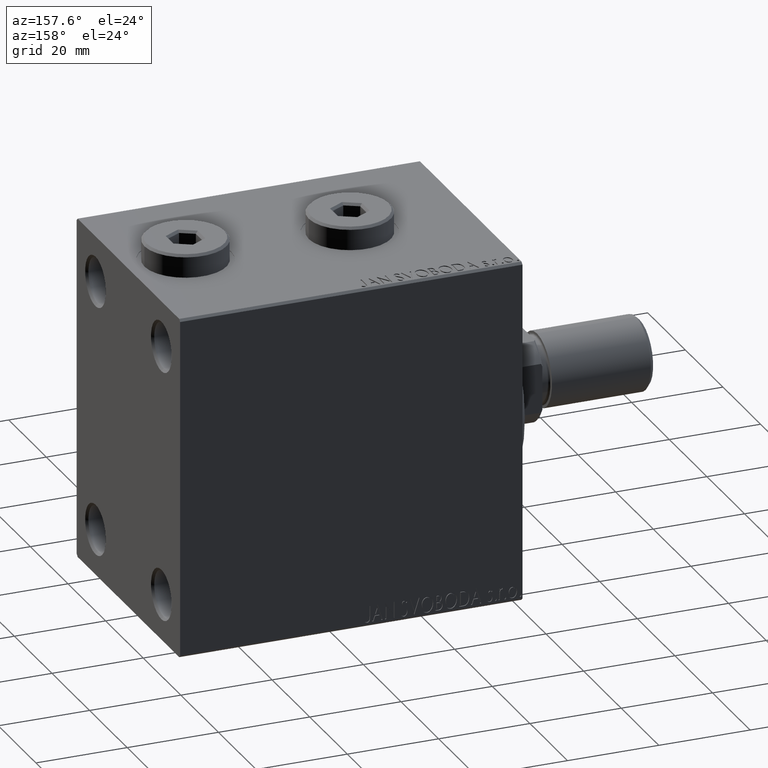
[diagram: clean part render]
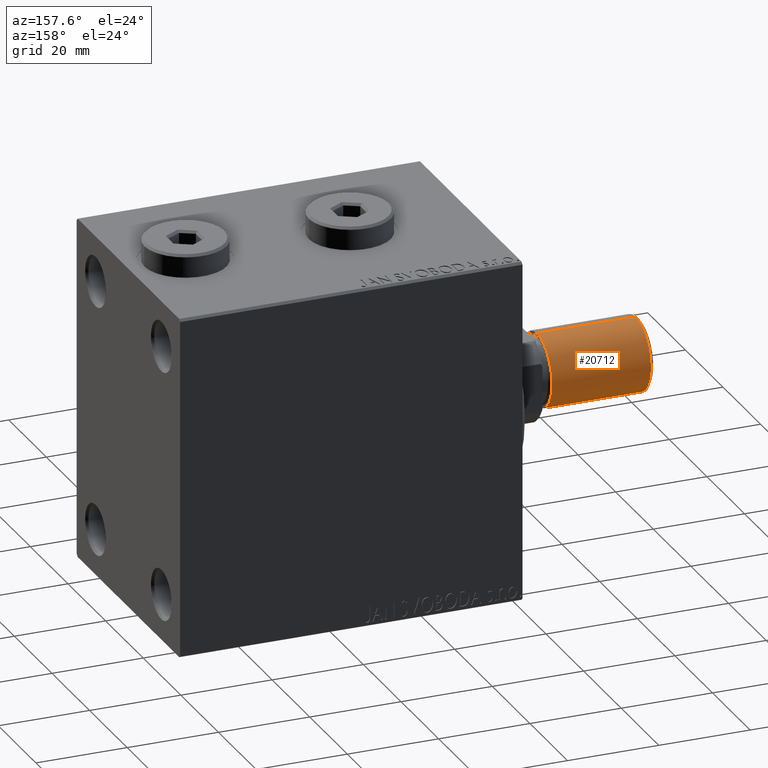
[diagram: same view with one face highlighted and labeled with its STEP entity id]
A machine part, auxiliary view. The second image highlights one B-rep face of the part: STEP entity #20712.
In plain terms, the highlighted cylindrical surface (partial cylindrical patch) has radius 8 mm, axis along (-1, -0, 0).
Its self-contained STEP definition (entity closure, byte-faithful):
#16 = AXIS2_PLACEMENT_3D ( 'NONE', #33824, #36636, #30319 ) ;
#132 = VECTOR ( 'NONE', #5917, 1000.000000000000000 ) ;
#1765 = CARTESIAN_POINT ( 'NONE',  ( -8.000000000000000000, 0.000000000000000000, 22.50000000000000000 ) ) ;
#3930 = CIRCLE ( 'NONE', #33674, 8.000000000000000000 ) ;
#5179 = ORIENTED_EDGE ( 'NONE', *, *, #44949, .T. ) ;
#5477 = ORIENTED_EDGE ( 'NONE', *, *, #17569, .T. ) ;
#5700 = LINE ( 'NONE', #1765, #132 ) ;
#5917 = DIRECTION ( 'NONE',  ( -0.000000000000000000, -0.000000000000000000, -1.000000000000000000 ) ) ;
#5951 = CARTESIAN_POINT ( 'NONE',  ( 8.000000000000000000, 9.797174393178823685E-16, 0.8000000000000160316 ) ) ;
#7570 = EDGE_CURVE ( 'NONE', #14302, #10058, #5700, .T. ) ;
#8569 = ORIENTED_EDGE ( 'NONE', *, *, #7570, .F. ) ;
#10058 = VERTEX_POINT ( 'NONE', #32736 ) ;
#11932 = CYLINDRICAL_SURFACE ( 'NONE', #16, 8.000000000000000000 ) ;
#13410 = EDGE_CURVE ( 'NONE', #23255, #14302, #3930, .T. ) ;
#13670 = CARTESIAN_POINT ( 'NONE',  ( 0.000000000000000000, 0.000000000000000000, 22.50000000000000000 ) ) ;
#14217 = VERTEX_POINT ( 'NONE', #5951 ) ;
#14302 = VERTEX_POINT ( 'NONE', #29693 ) ;
#16467 = EDGE_LOOP ( 'NONE', ( #19207, #5179, #5477, #8569 ) ) ;
#17569 = EDGE_CURVE ( 'NONE', #14217, #10058, #17846, .T. ) ;
#17627 = DIRECTION ( 'NONE',  ( 1.000000000000000000, 0.000000000000000000, 0.000000000000000000 ) ) ;
#17846 = CIRCLE ( 'NONE', #24533, 8.000000000000000000 ) ;
#19207 = ORIENTED_EDGE ( 'NONE', *, *, #13410, .F. ) ;
#20712 = ADVANCED_FACE ( 'NONE', ( #29876 ), #11932, .T. ) ;
#22866 = VECTOR ( 'NONE', #44975, 1000.000000000000000 ) ;
#23255 = VERTEX_POINT ( 'NONE', #30912 ) ;
#24533 = AXIS2_PLACEMENT_3D ( 'NONE', #43242, #32778, #39745 ) ;
#29693 = CARTESIAN_POINT ( 'NONE',  ( -8.000000000000000000, 0.000000000000000000, 22.50000000000000000 ) ) ;
#29876 = FACE_OUTER_BOUND ( 'NONE', #16467, .T. ) ;
#30319 = DIRECTION ( 'NONE',  ( -1.000000000000000000, 0.000000000000000000, 0.000000000000000000 ) ) ;
#30912 = CARTESIAN_POINT ( 'NONE',  ( 8.000000000000000000, 9.797174393178823685E-16, 22.50000000000000000 ) ) ;
#32736 = CARTESIAN_POINT ( 'NONE',  ( -8.000000000000000000, 0.000000000000000000, 0.8000000000000160316 ) ) ;
#32778 = DIRECTION ( 'NONE',  ( -0.000000000000000000, -0.000000000000000000, 1.000000000000000000 ) ) ;
#33674 = AXIS2_PLACEMENT_3D ( 'NONE', #13670, #35573, #17627 ) ;
#33824 = CARTESIAN_POINT ( 'NONE',  ( 0.000000000000000000, 0.000000000000000000, 22.50000000000000000 ) ) ;
#34295 = LINE ( 'NONE', #41039, #22866 ) ;
#35573 = DIRECTION ( 'NONE',  ( 0.000000000000000000, 0.000000000000000000, 1.000000000000000000 ) ) ;
#36636 = DIRECTION ( 'NONE',  ( -0.000000000000000000, -0.000000000000000000, -1.000000000000000000 ) ) ;
#39745 = DIRECTION ( 'NONE',  ( 1.000000000000000000, 0.000000000000000000, 0.000000000000000000 ) ) ;
#41039 = CARTESIAN_POINT ( 'NONE',  ( 8.000000000000000000, 9.797174393178823685E-16, 22.50000000000000000 ) ) ;
#43242 = CARTESIAN_POINT ( 'NONE',  ( 0.000000000000000000, 0.000000000000000000, 0.8000000000000160316 ) ) ;
#44949 = EDGE_CURVE ( 'NONE', #23255, #14217, #34295, .T. ) ;
#44975 = DIRECTION ( 'NONE',  ( -0.000000000000000000, -0.000000000000000000, -1.000000000000000000 ) ) ;